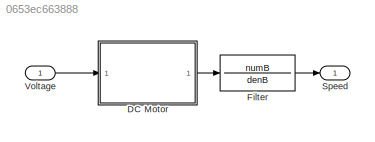
MODEL slx_0653ec663888
KIND model
CONFIG AbsTol = auto
CONFIG EnableMultiTasking = off
CONFIG FixedStep = auto
CONFIG MaxStep = auto
CONFIG MinStep = auto
CONFIG RelTol = 1e-3
CONFIG SampleTimeConstraint = Unconstrained
CONFIG SolverName = VariableStepAuto
CONFIG StartTime = 0.0
CONFIG StopTime = 10.0
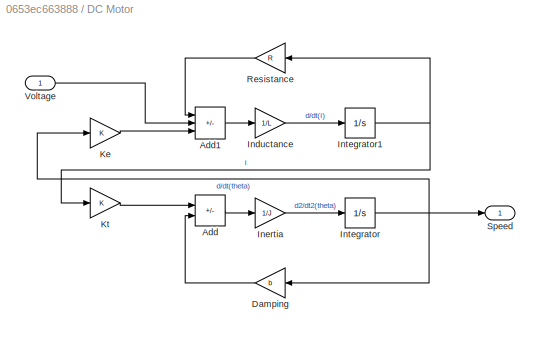
BLOCK [SubSystem] DC Motor
BLOCK [Sum] DC Motor/Add
  IconShape = rectangular
  Inputs = +-
BLOCK [Sum] DC Motor/Add1
  IconShape = rectangular
  Inputs = -+-
BLOCK [Gain] DC Motor/Damping
  Gain = b
BLOCK [Gain] DC Motor/Inductance
  Gain = 1/L
BLOCK [Gain] DC Motor/Inertia
  Gain = 1/J
BLOCK [Integrator] DC Motor/Integrator
BLOCK [Integrator] DC Motor/Integrator1
BLOCK [Gain] DC Motor/Ke
  Gain = K
BLOCK [Gain] DC Motor/Kt
  Gain = K
BLOCK [Gain] DC Motor/Resistance
  Gain = R
BLOCK [Outport] DC Motor/Speed
BLOCK [Inport] DC Motor/Voltage
BLOCK [TransferFcn] Filter
  Denominator = denB
  Numerator = numB
BLOCK [Outport] Speed
BLOCK [Inport] Voltage
LINE DC Motor/Add1:1 -> DC Motor/Inductance:1
LINE DC Motor/Add:1 -> DC Motor/Inertia:1
LINE DC Motor/Damping:1 -> DC Motor/Add:2
LINE DC Motor/Inductance:1 -> DC Motor/Integrator1:1
LINE DC Motor/Inertia:1 -> DC Motor/Integrator:1
NET DC Motor/Integrator1:1 -> DC Motor/Kt:1, DC Motor/Resistance:1
NET DC Motor/Integrator:1 -> DC Motor/Damping:1, DC Motor/Ke:1, DC Motor/Speed:1
LINE DC Motor/Ke:1 -> DC Motor/Add1:3
LINE DC Motor/Kt:1 -> DC Motor/Add:1
LINE DC Motor/Resistance:1 -> DC Motor/Add1:1
LINE DC Motor/Voltage:1 -> DC Motor/Add1:2
LINE DC Motor:1 -> Filter:1
LINE Filter:1 -> Speed:1
LINE Voltage:1 -> DC Motor:1
note: NET lines group one-source signal fan-out (src -> all destinations, sorted); 1:1 wires keep LINE
